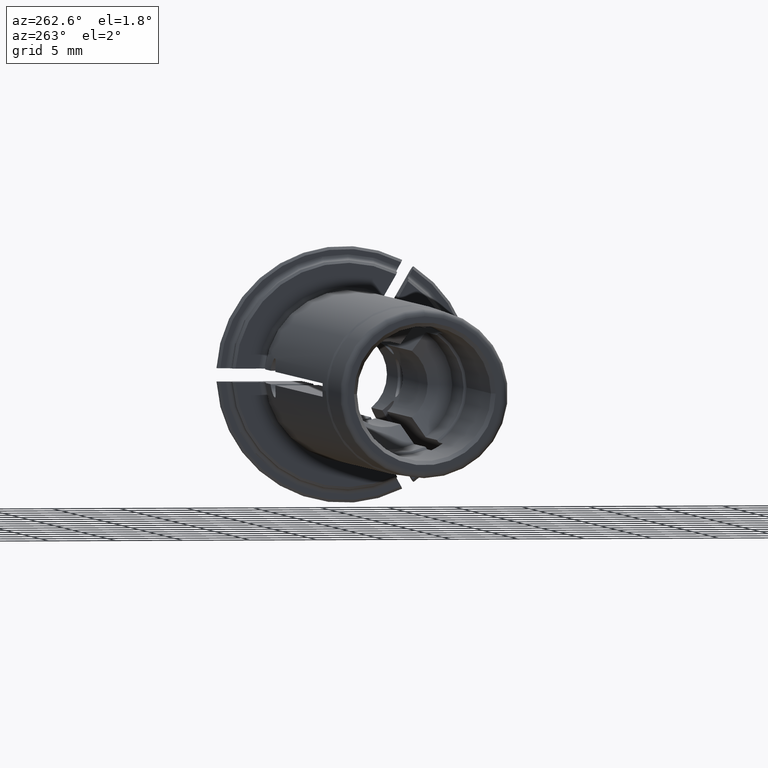
[diagram: clean part render]
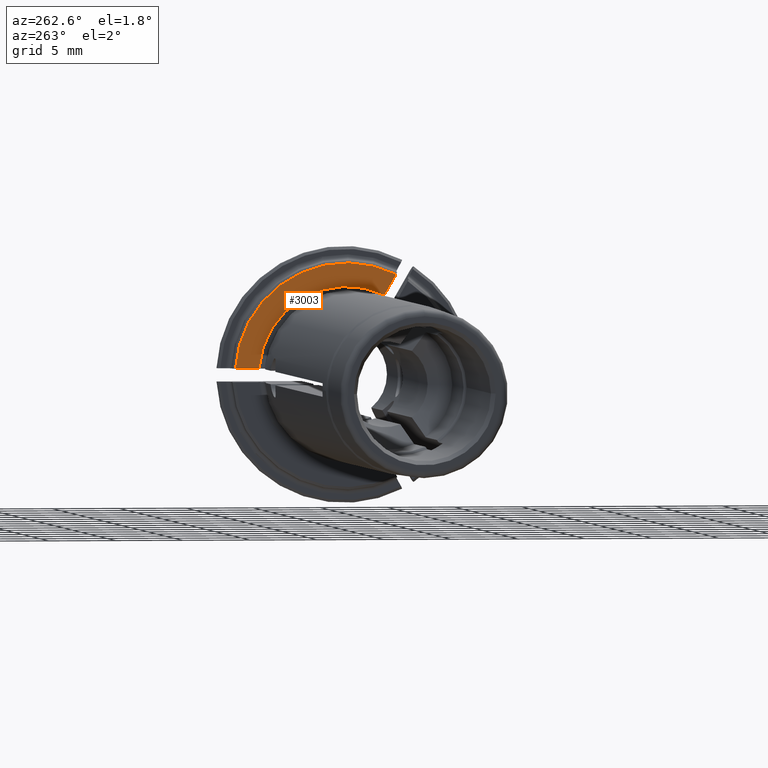
[diagram: same view with one face highlighted and labeled with its STEP entity id]
A machine part, auxiliary view. The second image highlights one B-rep face of the part: STEP entity #3003.
In plain terms, the highlighted planar face has unit normal (1, 0, 0).
Its self-contained STEP definition (entity closure, byte-faithful):
#1015=CARTESIAN_POINT('',(0.E0,0.E0,0.E0));
#1016=DIRECTION('',(-1.E0,0.E0,0.E0));
#1017=DIRECTION('',(0.E0,-4.469217269337E-1,8.945730657664E-1));
#1018=AXIS2_PLACEMENT_3D('',#1015,#1016,#1017);
#1080=DIRECTION('',(0.E0,5.E-1,-8.660254037844E-1));
#1081=VECTOR('',#1080,1.754037923012E0);
#1082=CARTESIAN_POINT('',(0.E0,-3.709450333549E0,7.424956445861E0));
#1083=LINE('',#1082,#1081);
#1084=DIRECTION('',(0.E0,-1.E0,0.E0));
#1085=VECTOR('',#1084,1.754037923012E0);
#1086=CARTESIAN_POINT('',(0.E0,8.284926070883E0,5.E-1));
#1087=LINE('',#1086,#1085);
#1131=CARTESIAN_POINT('',(0.E0,0.E0,0.E0));
#1132=DIRECTION('',(1.E0,0.E0,0.E0));
#1133=DIRECTION('',(0.E0,9.970821599803E-1,7.633587786260E-2));
#1134=AXIS2_PLACEMENT_3D('',#1131,#1132,#1133);
#1752=CARTESIAN_POINT('',(0.E0,8.284926070883E0,5.E-1));
#1753=CARTESIAN_POINT('',(0.E0,6.530888147871E0,5.E-1));
#1754=VERTEX_POINT('',#1752);
#1755=VERTEX_POINT('',#1753);
#1861=CARTESIAN_POINT('',(0.E0,-3.709450333549E0,7.424956445861E0));
#1862=CARTESIAN_POINT('',(0.E0,-2.832431372043E0,5.905915045331E0));
#1863=VERTEX_POINT('',#1861);
#1864=VERTEX_POINT('',#1862);
#2990=CARTESIAN_POINT('',(0.E0,0.E0,0.E0));
#2991=DIRECTION('',(1.E0,0.E0,0.E0));
#2992=DIRECTION('',(0.E0,-1.E0,0.E0));
#2993=AXIS2_PLACEMENT_3D('',#2990,#2991,#2992);
#2994=PLANE('',#2993);
#2995=ORIENTED_EDGE('',*,*,#2126,.T.);
#2997=ORIENTED_EDGE('',*,*,#2996,.F.);
#2999=ORIENTED_EDGE('',*,*,#2998,.F.);
#3000=ORIENTED_EDGE('',*,*,#2954,.F.);
#3001=EDGE_LOOP('',(#2995,#2997,#2999,#3000));
#3002=FACE_OUTER_BOUND('',#3001,.F.);
#3003=ADVANCED_FACE('',(#3002),#2994,.F.);
#1019=CIRCLE('',#1018,8.3E0);
#1135=CIRCLE('',#1134,6.55E0);
#2126=EDGE_CURVE('',#1863,#1864,#1083,.T.);
#2954=EDGE_CURVE('',#1863,#1754,#1019,.T.);
#2996=EDGE_CURVE('',#1755,#1864,#1135,.T.);
#2998=EDGE_CURVE('',#1754,#1755,#1087,.T.);